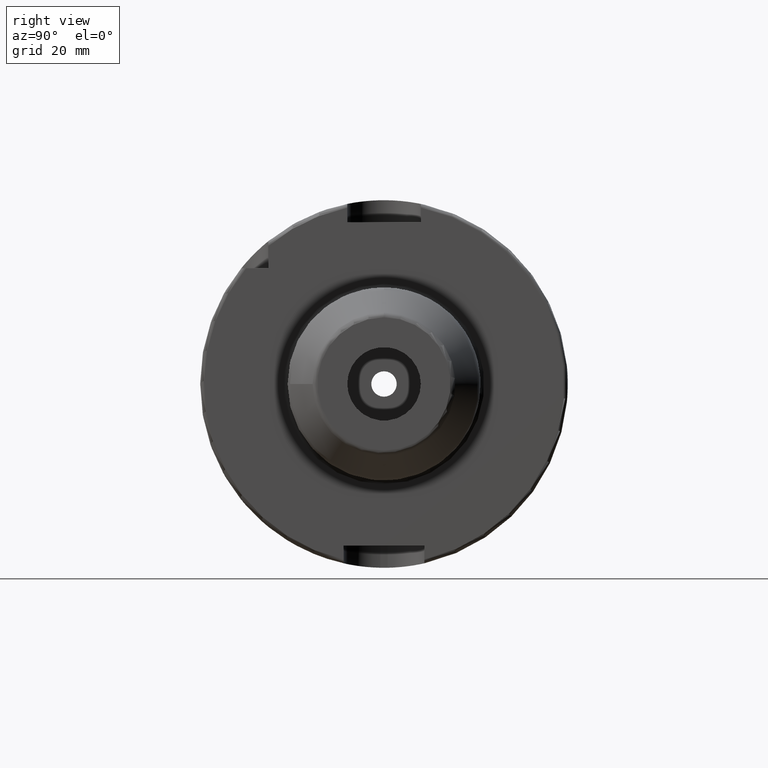
[diagram: clean part render]
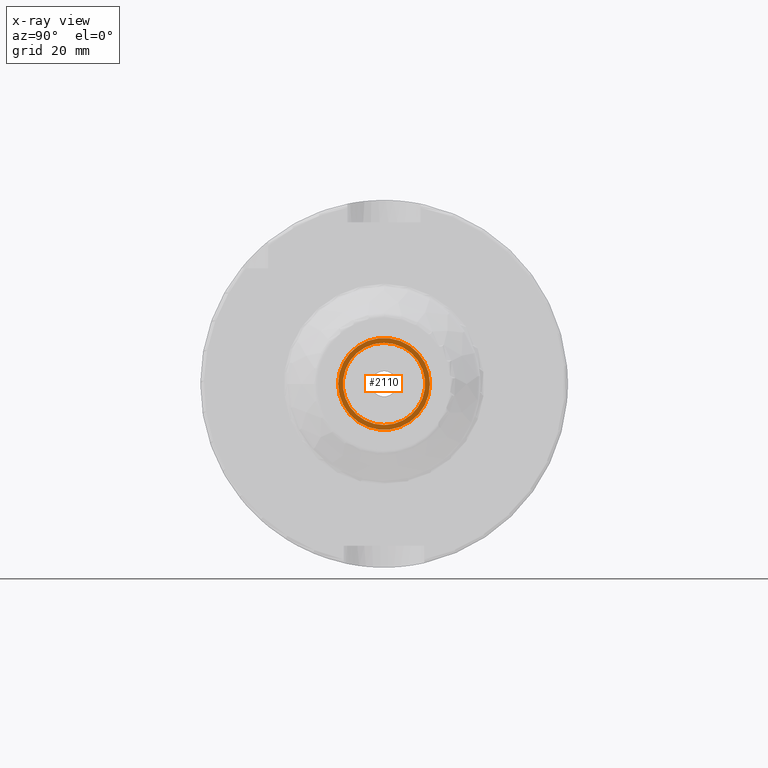
[diagram: x-ray — body ghosted, one internal face saturated and labeled with its STEP entity id]
A machine part, right view, then the same camera in x-ray: the body is ghosted and one INTERNAL B-rep face — a face not visible from any outside direction — is saturated and labeled: STEP entity #2110.
In plain terms, the highlighted planar face has unit normal (-1, 0, 0).
Its self-contained STEP definition (entity closure, byte-faithful):
#101=FACE_BOUND('',#420,.T.);
#137=PLANE('',#2377);
#289=FACE_OUTER_BOUND('',#419,.T.);
#419=EDGE_LOOP('',(#1887));
#420=EDGE_LOOP('',(#1888));
#769=CIRCLE('',#2368,11.188101);
#774=CIRCLE('',#2376,12.5);
#986=VERTEX_POINT('',#4514);
#990=VERTEX_POINT('',#4527);
#1291=EDGE_CURVE('',#986,#986,#769,.T.);
#1297=EDGE_CURVE('',#990,#990,#774,.T.);
#1887=ORIENTED_EDGE('',*,*,#1297,.F.);
#1888=ORIENTED_EDGE('',*,*,#1291,.T.);
#2110=ADVANCED_FACE('',(#289,#101),#137,.F.);
#2368=AXIS2_PLACEMENT_3D('',#4516,#2953,#2954);
#2376=AXIS2_PLACEMENT_3D('',#4529,#2970,#2971);
#2377=AXIS2_PLACEMENT_3D('',#4530,#2972,#2973);
#2953=DIRECTION('center_axis',(-1.,0.,0.));
#2954=DIRECTION('ref_axis',(0.,0.,1.));
#2970=DIRECTION('center_axis',(-1.,0.,0.));
#2971=DIRECTION('ref_axis',(0.,0.,1.));
#2972=DIRECTION('center_axis',(-1.,0.,0.));
#2973=DIRECTION('ref_axis',(0.,0.,1.));
#4514=CARTESIAN_POINT('',(22.5,-1.37014720781873E-15,-11.188101));
#4516=CARTESIAN_POINT('Origin',(22.5,0.,0.));
#4527=CARTESIAN_POINT('',(22.5,-12.5,1.53080849893419E-15));
#4529=CARTESIAN_POINT('Origin',(22.5,0.,0.));
#4530=CARTESIAN_POINT('Origin',(22.5,10.,0.));